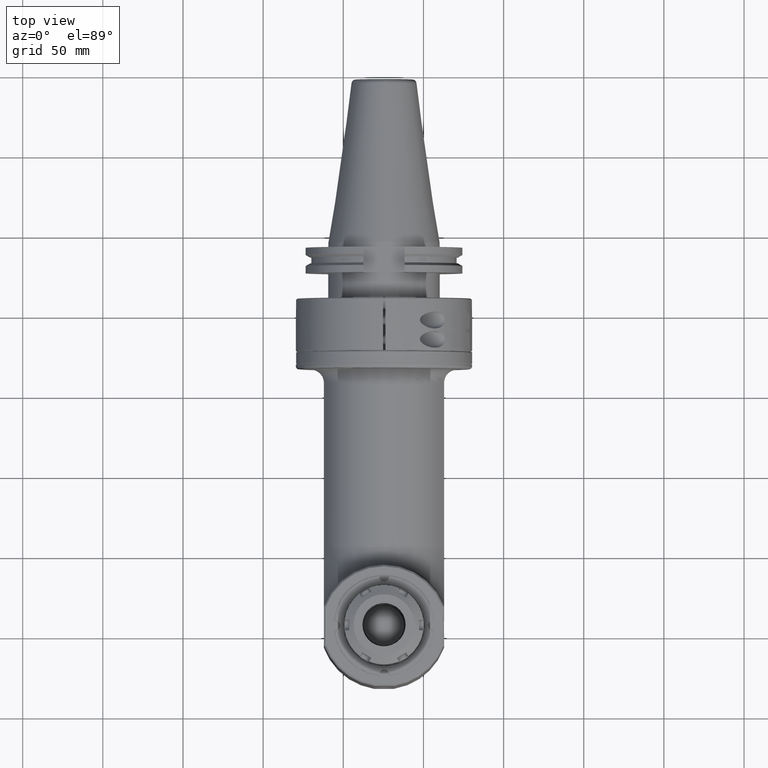
[diagram: clean part render]
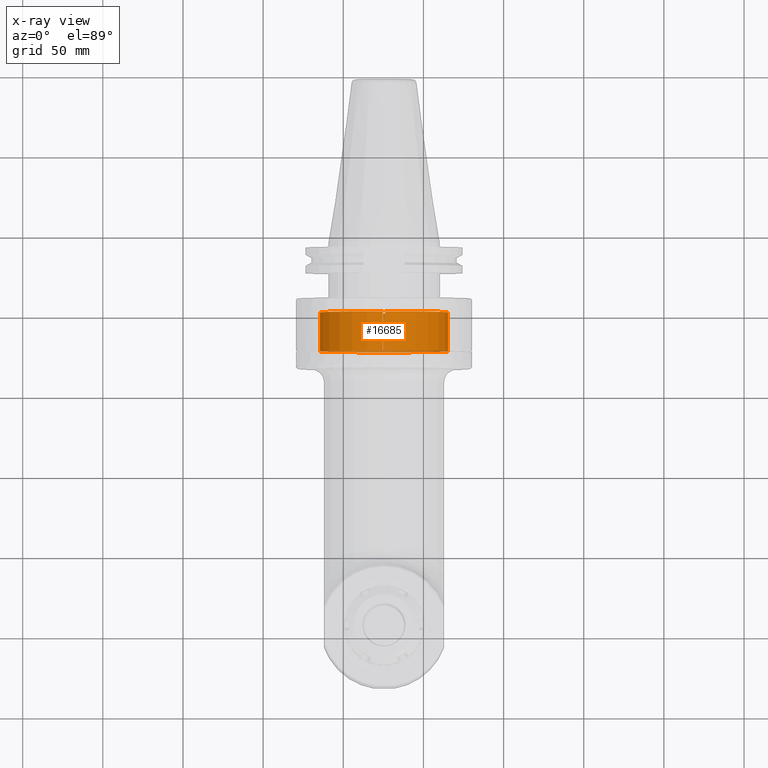
[diagram: x-ray — body ghosted, one internal face saturated and labeled with its STEP entity id]
A machine part, top view, then the same camera in x-ray: the body is ghosted and one INTERNAL B-rep face — a face not visible from any outside direction — is saturated and labeled: STEP entity #16685.
In plain terms, the highlighted cylindrical surface (partial cylindrical patch) has radius 40 mm, axis along (0, -1, 0).
Its self-contained STEP definition (entity closure, byte-faithful):
#1598=FACE_OUTER_BOUND('',#2626,.T.);
#2626=EDGE_LOOP('',(#13956,#13957,#13958,#13959));
#3841=CIRCLE('',#18227,40.);
#3843=CIRCLE('',#18230,40.);
#4868=LINE('',#29918,#6240);
#4881=LINE('',#29996,#6253);
#6240=VECTOR('',#21776,24.30004767091);
#6253=VECTOR('',#21819,24.30004765531);
#7972=VERTEX_POINT('',#29913);
#7973=VERTEX_POINT('',#29917);
#7994=VERTEX_POINT('',#29978);
#7998=VERTEX_POINT('',#29994);
#10076=EDGE_CURVE('',#7972,#7973,#4868,.T.);
#10108=EDGE_CURVE('',#7998,#7994,#4881,.T.);
#10111=EDGE_CURVE('',#7972,#7994,#3841,.T.);
#10113=EDGE_CURVE('',#7998,#7973,#3843,.T.);
#13956=ORIENTED_EDGE('',*,*,#10111,.T.);
#13957=ORIENTED_EDGE('',*,*,#10108,.F.);
#13958=ORIENTED_EDGE('',*,*,#10113,.T.);
#13959=ORIENTED_EDGE('',*,*,#10076,.F.);
#16044=CYLINDRICAL_SURFACE('',#18229,40.);
#16685=ADVANCED_FACE('',(#1598),#16044,.F.);
#18227=AXIS2_PLACEMENT_3D('',#30002,#21826,#21827);
#18229=AXIS2_PLACEMENT_3D('',#30004,#21830,#21831);
#18230=AXIS2_PLACEMENT_3D('',#30005,#21832,#21833);
#21776=DIRECTION('',(-1.25095002425E-9,-1.,2.347067178072E-11));
#21819=DIRECTION('',(-1.239082874416E-9,1.,-2.323616391245E-11));
#21826=DIRECTION('center_axis',(0.,1.,0.));
#21827=DIRECTION('ref_axis',(-1.,0.,-1.915100727758E-14));
#21830=DIRECTION('center_axis',(0.,-1.,0.));
#21831=DIRECTION('ref_axis',(1.37294013983652E-12,0.,-1.));
#21832=DIRECTION('center_axis',(0.,-1.,0.));
#21833=DIRECTION('ref_axis',(-0.0187500000001792,0.,0.999824203297756));
#29913=CARTESIAN_POINT('',(0.749999969908325,24.5000246904939,39.9929666935977));
#29917=CARTESIAN_POINT('',(0.749999858271442,0.199966628751582,39.9929665181675));
#29918=CARTESIAN_POINT('',(0.7499999129051,24.50002011506,39.99296630022));
#29978=CARTESIAN_POINT('',(-0.74999996980076,24.5000246865949,39.9929666897006));
#29994=CARTESIAN_POINT('',(-0.749999858308147,0.199966632651203,39.9929665142669));
#29996=CARTESIAN_POINT('',(-0.7499998825072,0.1999724519452,39.99296629299));
#30002=CARTESIAN_POINT('Origin',(-2.13162810728E-13,24.50002821965,7.709388782997E-13));
#30004=CARTESIAN_POINT('Origin',(0.,34.65,0.));
#30005=CARTESIAN_POINT('Origin',(-1.399769179447E-12,0.1999622133786,1.811883986188E-12));